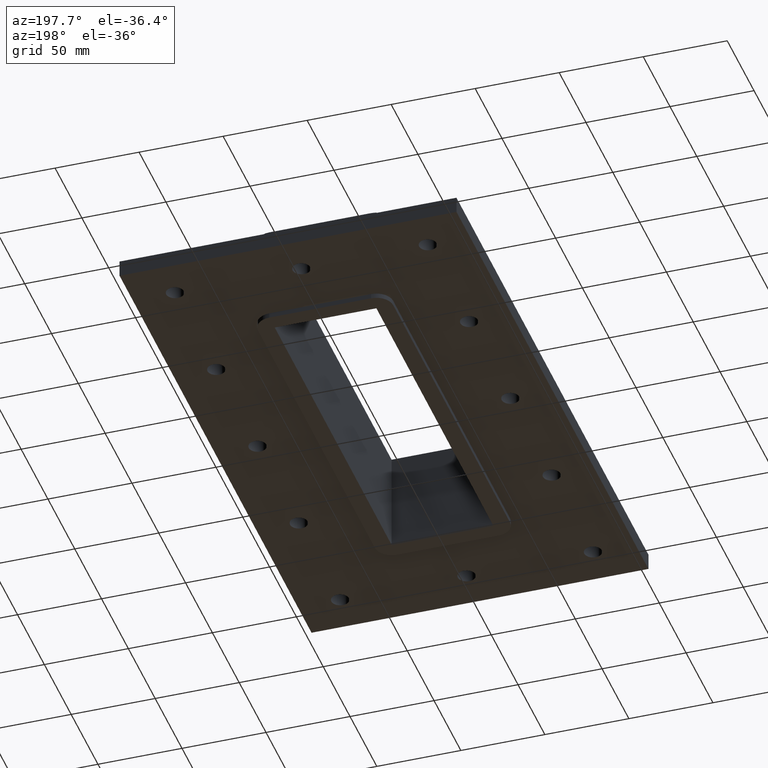
[diagram: clean part render]
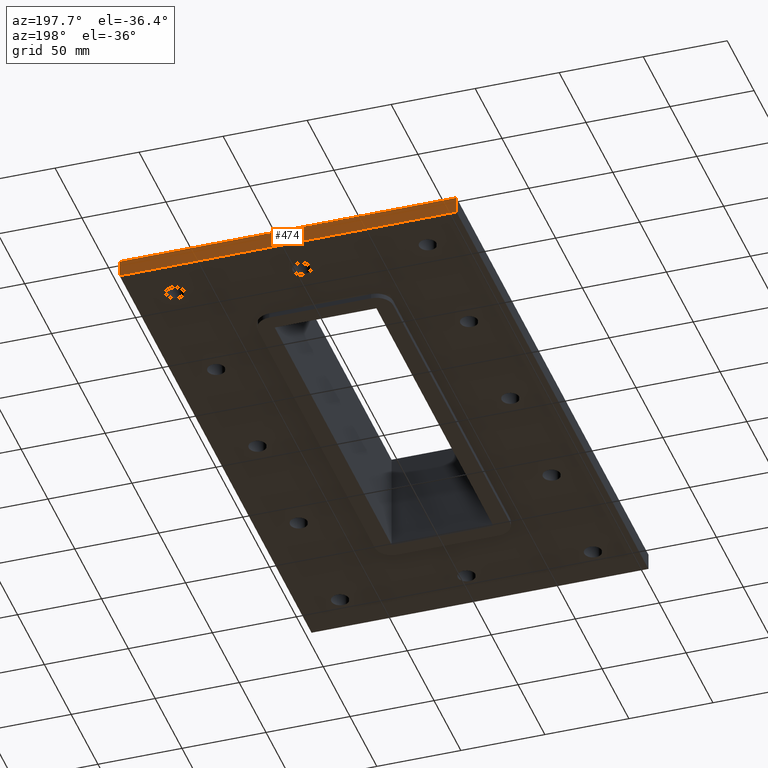
[diagram: same view with one face highlighted and labeled with its STEP entity id]
A machine part, auxiliary view. The second image highlights one B-rep face of the part: STEP entity #474.
In plain terms, the highlighted planar face has unit normal (0, 1, 0).
Its self-contained STEP definition (entity closure, byte-faithful):
#411=CARTESIAN_POINT('',(-100.25000000000006,179.00000000000003,-27.0));
#412=VERTEX_POINT('',#411);
#427=CARTESIAN_POINT('',(-100.25000000000006,179.00000000000003,-17.0));
#428=VERTEX_POINT('',#427);
#435=CARTESIAN_POINT('',(-100.25000000000006,179.00000000000003,-27.0));
#436=DIRECTION('',(0.0,0.0,1.0));
#437=VECTOR('',#436,10.0);
#438=LINE('',#435,#437);
#439=EDGE_CURVE('',#412,#428,#438,.T.);
#444=CARTESIAN_POINT('',(100.24999999999999,179.00000000000003,-27.0));
#445=DIRECTION('',(0.0,1.0,0.0));
#446=DIRECTION('',(-1.0,0.0,0.0));
#447=AXIS2_PLACEMENT_3D('',#444,#445,#446);
#448=PLANE('',#447);
#449=CARTESIAN_POINT('',(100.24999999999999,179.00000000000003,-27.0));
#450=VERTEX_POINT('',#449);
#451=CARTESIAN_POINT('',(-100.25000000000006,179.00000000000003,-27.0));
#452=DIRECTION('',(1.0,0.0,0.0));
#453=VECTOR('',#452,200.50000000000006);
#454=LINE('',#451,#453);
#455=EDGE_CURVE('',#412,#450,#454,.T.);
#456=ORIENTED_EDGE('',*,*,#455,.F.);
#457=ORIENTED_EDGE('',*,*,#439,.T.);
#458=CARTESIAN_POINT('',(100.24999999999999,179.00000000000003,-17.0));
#459=VERTEX_POINT('',#458);
#460=CARTESIAN_POINT('',(100.25,179.00000000000003,-17.0));
#461=DIRECTION('',(-1.0,0.0,0.0));
#462=VECTOR('',#461,200.50000000000006);
#463=LINE('',#460,#462);
#464=EDGE_CURVE('',#459,#428,#463,.T.);
#465=ORIENTED_EDGE('',*,*,#464,.F.);
#466=CARTESIAN_POINT('',(100.24999999999999,179.00000000000003,-27.0));
#467=DIRECTION('',(0.0,0.0,1.0));
#468=VECTOR('',#467,10.0);
#469=LINE('',#466,#468);
#470=EDGE_CURVE('',#450,#459,#469,.T.);
#471=ORIENTED_EDGE('',*,*,#470,.F.);
#472=EDGE_LOOP('',(#456,#457,#465,#471));
#473=FACE_OUTER_BOUND('',#472,.T.);
#474=ADVANCED_FACE('',(#473),#448,.T.);